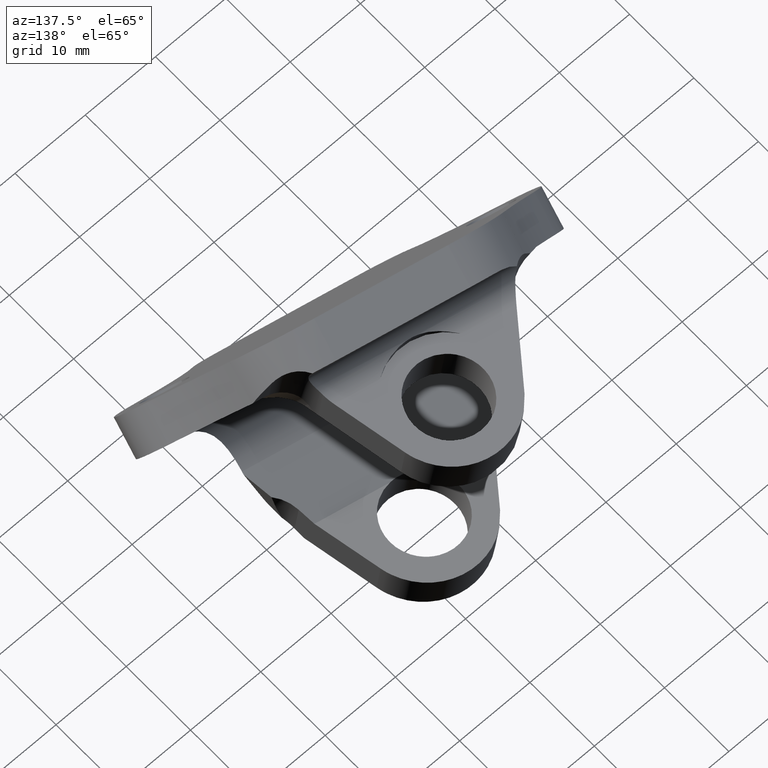
[diagram: clean part render]
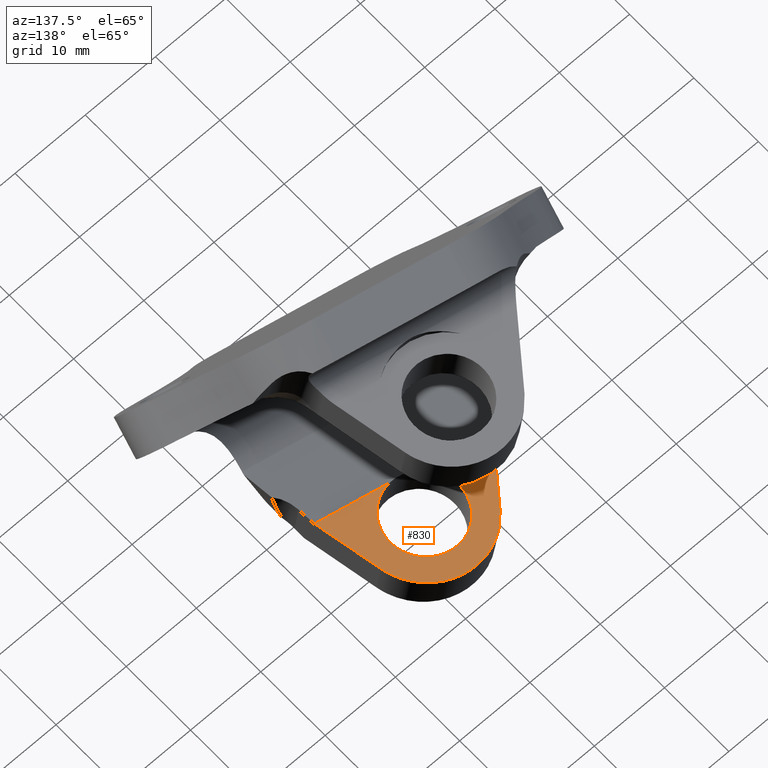
[diagram: same view with one face highlighted and labeled with its STEP entity id]
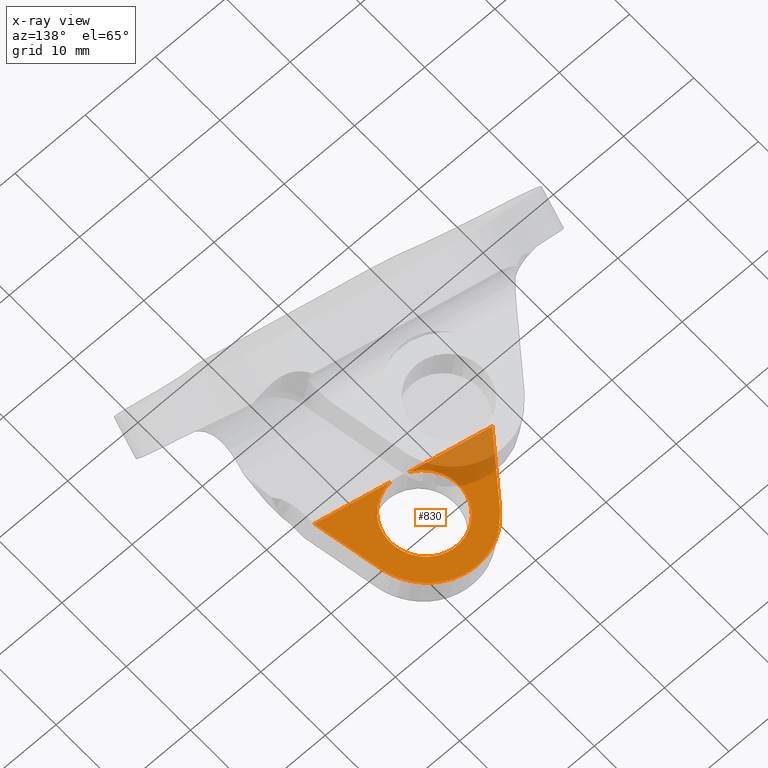
[diagram: x-ray of the same camera — body ghosted, the highlighted face saturated]
A machine part, auxiliary view. The second image highlights one B-rep face of the part: STEP entity #830.
The next image is the same camera in x-ray: the body ghosted, the highlighted face saturated — about 24% of this face is hidden behind the body in this view.
In plain terms, the highlighted planar face has unit normal (0.056, -0.0571, -0.9968).
Its self-contained STEP definition (entity closure, byte-faithful):
#572=CARTESIAN_POINT('Vertex',(1326.65809158,273.781320515,145.635903113)) ;
#575=CARTESIAN_POINT('Line Origine',(1322.00496476,274.590878859,145.328130789)) ;
#579=CARTESIAN_POINT('Vertex',(1317.35183795,275.400437202,145.020358466)) ;
#592=CARTESIAN_POINT('Vertex',(1315.04839434,275.801193954,144.86800152)) ;
#595=CARTESIAN_POINT('Line Origine',(1309.92676619,276.692262898,144.529241057)) ;
#599=CARTESIAN_POINT('Vertex',(1304.80513804,277.583331842,144.190480594)) ;
#726=CARTESIAN_POINT('Axis2P3D Location',(1319.97046402,296.895423887,143.935758324)) ;
#731=CARTESIAN_POINT('Line Origine',(1325.75556242,277.940704301,145.3468652)) ;
#735=CARTESIAN_POINT('Vertex',(1324.85303326,282.100088087,145.057827287)) ;
#739=CARTESIAN_POINT('Control Point',(1310.7327118,285.253651488,144.083932372)) ;
#740=CARTESIAN_POINT('Control Point',(1311.18593512,285.840125465,144.075785676)) ;
#741=CARTESIAN_POINT('Control Point',(1311.70691271,286.374333376,144.074439919)) ;
#742=CARTESIAN_POINT('Control Point',(1312.28757506,286.8457981,144.080042163)) ;
#743=CARTESIAN_POINT('Control Point',(1313.54720739,287.646101376,144.104941667)) ;
#744=CARTESIAN_POINT('Control Point',(1314.95552618,288.137867504,144.155873123)) ;
#745=CARTESIAN_POINT('Control Point',(1315.68505736,288.300840158,144.18751498)) ;
#746=CARTESIAN_POINT('Control Point',(1317.16796753,288.4549301,144.261985909)) ;
#747=CARTESIAN_POINT('Control Point',(1318.64574088,288.266021235,144.355822678)) ;
#748=CARTESIAN_POINT('Control Point',(1319.37011587,288.08595631,144.40683151)) ;
#749=CARTESIAN_POINT('Control Point',(1320.76337571,287.561185253,144.515166299)) ;
#750=CARTESIAN_POINT('Control Point',(1321.99871942,286.731401282,144.632108097)) ;
#751=CARTESIAN_POINT('Control Point',(1322.56517551,286.246280938,144.691726218)) ;
#752=CARTESIAN_POINT('Control Point',(1323.52277585,285.209786648,144.804910986)) ;
#753=CARTESIAN_POINT('Control Point',(1324.23091727,283.990997694,144.914528511)) ;
#754=CARTESIAN_POINT('Control Point',(1324.5043342,283.381727264,144.964799545)) ;
#755=CARTESIAN_POINT('Control Point',(1324.71237572,282.748320533,145.01278125)) ;
#756=CARTESIAN_POINT('Control Point',(1324.85303326,282.100088087,145.057827287)) ;
#757=CARTESIAN_POINT('Vertex',(1310.7327118,285.253651488,144.083932372)) ;
#760=CARTESIAN_POINT('Line Origine',(1307.76892492,281.418491665,144.137206483)) ;
#766=CARTESIAN_POINT('Control Point',(1315.04839434,275.801193954,144.86800152)) ;
#767=CARTESIAN_POINT('Control Point',(1314.82218213,275.899290512,144.849673252)) ;
#768=CARTESIAN_POINT('Control Point',(1314.60207915,276.011388974,144.830885829)) ;
#769=CARTESIAN_POINT('Control Point',(1314.3892371,276.13699005,144.811732558)) ;
#770=CARTESIAN_POINT('Control Point',(1314.1847472,276.2754496,144.792311646)) ;
#771=CARTESIAN_POINT('Control Point',(1313.98960256,276.426000834,144.772722819)) ;
#772=CARTESIAN_POINT('Vertex',(1313.98960256,276.426000834,144.772722819)) ;
#776=CARTESIAN_POINT('Control Point',(1313.98960256,276.426000834,144.772722819)) ;
#777=CARTESIAN_POINT('Control Point',(1313.5262767,276.783449977,144.726213673)) ;
#778=CARTESIAN_POINT('Control Point',(1313.11563255,277.209061057,144.678758062)) ;
#779=CARTESIAN_POINT('Control Point',(1312.77096253,277.692636798,144.631686992)) ;
#780=CARTESIAN_POINT('Control Point',(1312.23389688,278.747273315,144.541085629)) ;
#781=CARTESIAN_POINT('Control Point',(1312.02308249,279.912738845,144.462460318)) ;
#782=CARTESIAN_POINT('Control Point',(1312.00465766,280.50746777,144.427346384)) ;
#783=CARTESIAN_POINT('Control Point',(1312.14292817,281.685206291,144.367627197)) ;
#784=CARTESIAN_POINT('Control Point',(1312.61379718,282.774580503,144.331654716)) ;
#785=CARTESIAN_POINT('Control Point',(1312.92806693,283.280926117,144.320293972)) ;
#786=CARTESIAN_POINT('Control Point',(1313.69556121,284.186772297,144.311500484)) ;
#787=CARTESIAN_POINT('Control Point',(1314.69036472,284.834604672,144.330260409)) ;
#788=CARTESIAN_POINT('Control Point',(1315.23198558,285.08284323,144.346460774)) ;
#789=CARTESIAN_POINT('Control Point',(1316.37144096,285.413194911,144.391538493)) ;
#790=CARTESIAN_POINT('Control Point',(1317.55671743,285.402360517,144.458740674)) ;
#791=CARTESIAN_POINT('Control Point',(1318.14414629,285.309312539,144.497070523)) ;
#792=CARTESIAN_POINT('Control Point',(1318.90626163,285.069228823,144.553638544)) ;
#793=CARTESIAN_POINT('Control Point',(1319.59962615,284.688020641,144.614431242)) ;
#794=CARTESIAN_POINT('Control Point',(1319.77392347,284.580152104,144.63040321)) ;
#795=CARTESIAN_POINT('Control Point',(1319.9423497,284.463513251,144.646547931)) ;
#796=CARTESIAN_POINT('Control Point',(1320.10433663,284.338542701,144.662808352)) ;
#797=CARTESIAN_POINT('Vertex',(1320.10433663,284.338542701,144.662808352)) ;
#801=CARTESIAN_POINT('Control Point',(1317.35183795,275.400437202,145.020358466)) ;
#802=CARTESIAN_POINT('Control Point',(1317.93683463,275.438118658,145.051060678)) ;
#803=CARTESIAN_POINT('Control Point',(1318.5165756,275.561632274,145.076549335)) ;
#804=CARTESIAN_POINT('Control Point',(1319.07430979,275.769946068,145.0959426)) ;
#805=CARTESIAN_POINT('Control Point',(1320.11291375,276.34395121,145.121393379)) ;
#806=CARTESIAN_POINT('Control Point',(1320.94369707,277.191684441,145.119485037)) ;
#807=CARTESIAN_POINT('Control Point',(1321.29379907,277.673992127,145.111514536)) ;
#808=CARTESIAN_POINT('Control Point',(1321.84237202,278.726570374,145.082015441)) ;
#809=CARTESIAN_POINT('Control Point',(1322.06571793,279.891430407,145.027813212)) ;
#810=CARTESIAN_POINT('Control Point',(1322.09050873,280.486075274,144.995131675)) ;
#811=CARTESIAN_POINT('Control Point',(1321.98055101,281.517097438,144.929875682)) ;
#812=CARTESIAN_POINT('Control Point',(1321.61521933,282.481553334,144.854088747)) ;
#813=CARTESIAN_POINT('Control Point',(1321.41350474,282.875793506,144.820167085)) ;
#814=CARTESIAN_POINT('Control Point',(1321.04881749,283.42782559,144.768048912)) ;
#815=CARTESIAN_POINT('Control Point',(1320.60052997,283.91024403,144.715223579)) ;
#816=CARTESIAN_POINT('Control Point',(1320.44293575,284.062154161,144.697666231)) ;
#817=CARTESIAN_POINT('Control Point',(1320.27730734,284.205098326,144.680171336)) ;
#818=CARTESIAN_POINT('Control Point',(1320.10433663,284.338542701,144.662808352)) ;
#576=DIRECTION('Vector Direction',(-0.983115227494,0.171043938009,-0.0650263080575)) ;
#596=DIRECTION('Vector Direction',(-0.983115227494,0.171043938009,-0.0650263080575)) ;
#727=DIRECTION('Axis2P3D Direction',(0.0559937081324,-0.0571180465142,-0.996795983846)) ;
#728=DIRECTION('Axis2P3D XDirection',(-0.174210086157,-0.983606374538,0.0465762369501)) ;
#732=DIRECTION('Vector Direction',(0.211564379007,-0.975012760998,0.0677541838235)) ;
#761=DIRECTION('Vector Direction',(-0.611443416867,-0.791211825238,0.0109907040062)) ;
#729=AXIS2_PLACEMENT_3D('Plane Axis2P3D',#726,#727,#728) ;
#821=ORIENTED_EDGE('',*,*,#581,.F.) ;
#822=ORIENTED_EDGE('',*,*,#737,.F.) ;
#823=ORIENTED_EDGE('',*,*,#759,.F.) ;
#824=ORIENTED_EDGE('',*,*,#764,.T.) ;
#825=ORIENTED_EDGE('',*,*,#601,.F.) ;
#826=ORIENTED_EDGE('',*,*,#774,.T.) ;
#827=ORIENTED_EDGE('',*,*,#799,.T.) ;
#828=ORIENTED_EDGE('',*,*,#819,.F.) ;
#577=VECTOR('Line Direction',#576,1.) ;
#597=VECTOR('Line Direction',#596,1.) ;
#733=VECTOR('Line Direction',#732,1.) ;
#762=VECTOR('Line Direction',#761,1.) ;
#830=ADVANCED_FACE('Hauptk\X2\00F6\X0\rper',(#829),#730,.F.) ;
#738=B_SPLINE_CURVE_WITH_KNOTS('',5,(#739,#740,#741,#742,#743,#744,#745,#746,#747,#748,#749,#750,#751,#752,#753,#754,#755,#756),.UNSPECIFIED.,.F.,.U.,(6,3,3,3,3,6),(0.,5.24132366203,10.4840097653,15.7265434617,20.9691930611,25.6703577655),.UNSPECIFIED.) ;
#765=B_SPLINE_CURVE_WITH_KNOTS('',5,(#766,#767,#768,#769,#770,#771),.UNSPECIFIED.,.F.,.U.,(6,6),(0.,1.74829664493),.UNSPECIFIED.) ;
#775=B_SPLINE_CURVE_WITH_KNOTS('',5,(#776,#777,#778,#779,#780,#781,#782,#783,#784,#785,#786,#787,#788,#789,#790,#791,#792,#793,#794,#795,#796),.UNSPECIFIED.,.F.,.U.,(6,3,3,3,3,3,6),(0.,4.15092671182,8.30422732265,12.4575565894,16.6106328985,20.7634853746,22.2147228593),.UNSPECIFIED.) ;
#800=B_SPLINE_CURVE_WITH_KNOTS('',5,(#801,#802,#803,#804,#805,#806,#807,#808,#809,#810,#811,#812,#813,#814,#815,#816,#817,#818),.UNSPECIFIED.,.F.,.U.,(6,3,3,3,3,6),(0.,4.15080493641,8.30399229114,12.4573514207,15.5723319923,17.1219729232),.UNSPECIFIED.) ;
#581=EDGE_CURVE('',#573,#580,#578,.T.) ;
#601=EDGE_CURVE('',#593,#600,#598,.T.) ;
#737=EDGE_CURVE('',#736,#573,#734,.T.) ;
#759=EDGE_CURVE('',#758,#736,#738,.T.) ;
#764=EDGE_CURVE('',#758,#600,#763,.T.) ;
#774=EDGE_CURVE('',#593,#773,#765,.T.) ;
#799=EDGE_CURVE('',#773,#798,#775,.T.) ;
#819=EDGE_CURVE('',#580,#798,#800,.T.) ;
#820=EDGE_LOOP('',(#821,#822,#823,#824,#825,#826,#827,#828)) ;
#829=FACE_OUTER_BOUND('',#820,.T.) ;
#578=LINE('Line',#575,#577) ;
#598=LINE('Line',#595,#597) ;
#734=LINE('Line',#731,#733) ;
#763=LINE('Line',#760,#762) ;
#730=PLANE('Plane',#729) ;
#573=VERTEX_POINT('',#572) ;
#580=VERTEX_POINT('',#579) ;
#593=VERTEX_POINT('',#592) ;
#600=VERTEX_POINT('',#599) ;
#736=VERTEX_POINT('',#735) ;
#758=VERTEX_POINT('',#757) ;
#773=VERTEX_POINT('',#772) ;
#798=VERTEX_POINT('',#797) ;